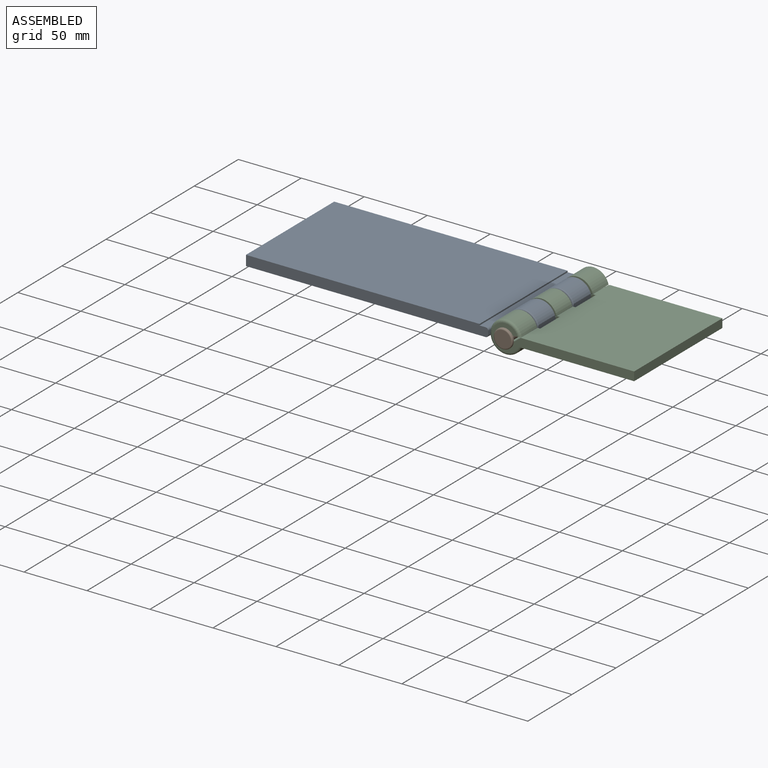
[diagram: assembled view]
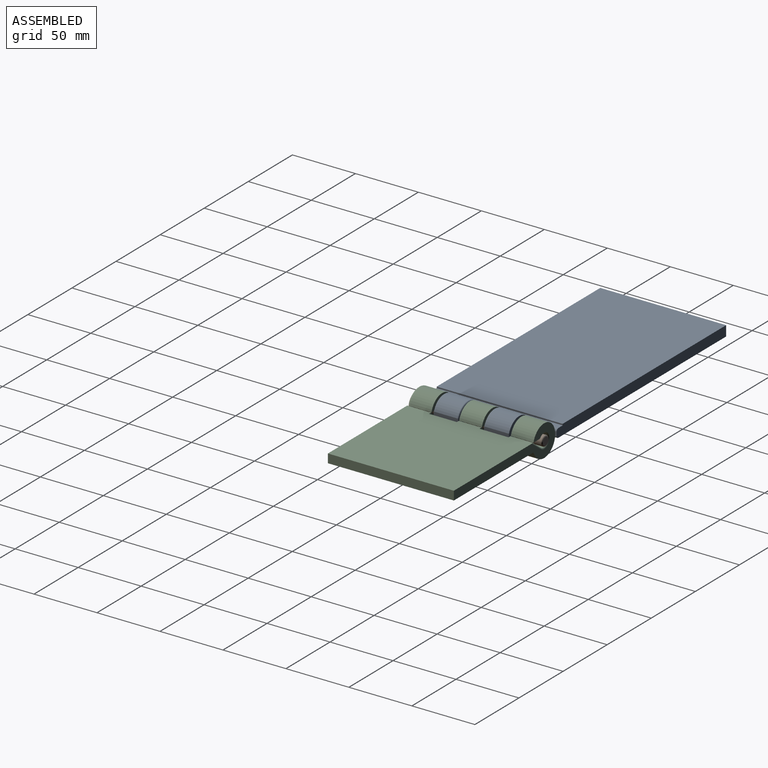
[diagram: assembled view, second angle]
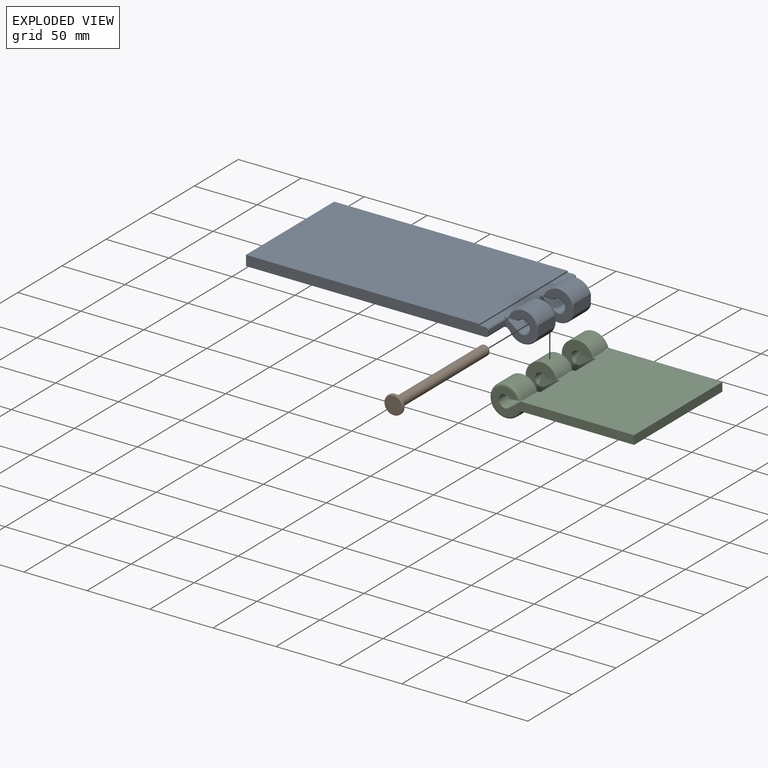
[diagram: exploded view]
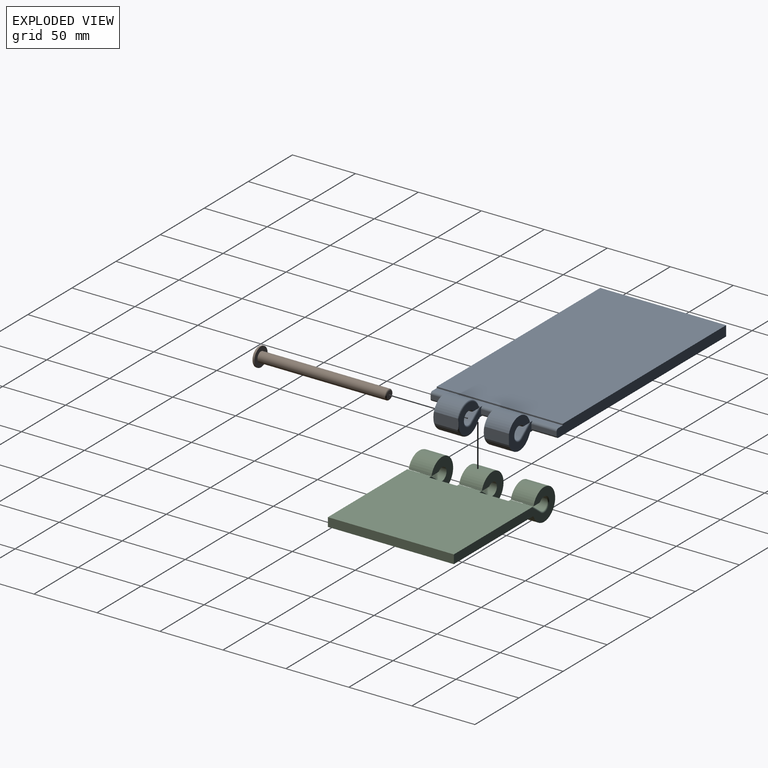
[diagram: exploded view, second angle]
ASSEMBLY  parts=3 mates=2
PART A: 88 faces, bbox 219.5x100x27.1 mm
  f0: cylinder r=12.5mm len=22.3mm, axis (0,-1,0), area 502mm2, adj f13,f38,f42,f50
  f1: cylinder r=12.5mm len=22.3mm, axis (0,-1,0), area 529.8mm2, adj f14,f25,f34,f51
  f2: plane 1.26x1mm, normal (1,0,0), area 0.3mm2, adj f11,f24,f41
  f3: plane 1.26x1mm, normal (1,0,0), area 0.3mm2, adj f12,f25,f31
  f4: plane 1.26x1mm, normal (1,0,0), area 0.3mm2, adj f11,f29,f37
  f5: plane 1.85x1mm, normal (1,0,0), area 0.4mm2, adj f13,f29,f39
  f6: plane 1.26x1mm, normal (1,0,0), area 0.3mm2, adj f12,f27,f33
  f7: cylinder r=12.5mm len=23.88mm, axis (0,-1,0), area 575.5mm2, adj f9,f19,f23,f38,f42,f48,f49,f50
  f8: cylinder r=12.5mm len=23.88mm, axis (0,-1,0), area 606mm2, adj f10,f25,f28,f34,f47,f51
  f9: plane 20.01x8.23mm, normal (0,0,-1), area 163.8mm2, adj f7,f19,f21,f23,f24,f29,f36,f38
  f10: plane 20.01x8.23mm, normal (0,0,-1), area 163.8mm2, adj f8,f20,f25,f27,f28,f30,f32,f34
  f11: plane 20x9.36mm, normal (0.61,0,0.8), area 213.7mm2, adj f2,f4,f17,f21,f24,f29,f37,f41
  f12: plane 20x9.36mm, normal (0.61,0,0.8), area 213.7mm2, adj f3,f6,f17,f20,f25,f27,f31,f33
  f13: plane 20x2.91mm, normal (-0.84,0,-0.54), area 65mm2, adj f0,f5,f18,f22,f24,f29,f39,f43
  f14: plane 20x2.91mm, normal (-0.84,0,-0.54), area 67.1mm2, adj f1,f18,f25,f26,f27,f35
  f15: plane 192.32x8.1mm, normal (0,1,0), area 1548.4mm2, adj f17,f18,f44,f54,f57,f58,f59,f60
  f16: plane 192.32x8.1mm, normal (0,-1,0), area 1548.4mm2, adj f17,f18,f46,f52,f55,f58,f59,f60
  f17: plane 100x8.21mm, normal (0,0,1), area 624.1mm2, adj f11,f12,f15,f16,f24,f25,f27,f29
  f18: plane 193.6x100mm, normal (0,0,-1), area 19163mm2, adj f13,f14,f15,f16,f24,f25,f27,f29
  f19: plane 1.31x1mm, normal (1,0,0), area 0.6mm2, adj f7,f9,f38,f48
  f20: cylinder r=5mm len=18mm, axis (0,-1,0), area 421.1mm2, adj f10,f12,f30,f32
  f21: cylinder r=5mm len=18mm, axis (0,-1,0), area 421.1mm2, adj f9,f11,f36,f40
  f22: plane 1.85x1mm, normal (1,0,0), area 0.4mm2, adj f13,f24,f43
  f23: plane 1.31x1mm, normal (1,0,0), area 0.6mm2, adj f7,f9,f42,f49
  f24: plane 27.17x23mm, normal (0,-1,0), area 296.2mm2, adj f2,f9,f11,f13,f17,f18,f22,f40
  f25: plane 27.46x25mm, normal (0,1,0), area 360.5mm2, adj f1,f3,f8,f10,f12,f14,f17,f18
  f26: plane 1.85x1mm, normal (1,0,0), area 0.4mm2, adj f14,f27,f35
  f27: plane 27.17x23mm, normal (0,-1,0), area 296.2mm2, adj f6,f10,f12,f14,f17,f18,f26,f32
  f28: plane 1.31x1mm, normal (1,0,0), area 0.6mm2, adj f8,f10,f34,f47
  f29: plane 27.17x23mm, normal (0,1,0), area 296.2mm2, adj f4,f5,f9,f11,f13,f17,f18,f36
  f30: torus R=6mm, axis (0,-1,0), area 39.9mm2, adj f10,f20,f25,f31
  f31: cylinder r=1mm len=9.25mm, axis (-0.8,0,0.61), area 16.6mm2, adj f3,f12,f25,f30
  f32: torus R=6mm, axis (0,-1,0), area 39.9mm2, adj f10,f20,f27,f33
  f33: cylinder r=1mm len=9.25mm, axis (0.8,0,-0.61), area 16.6mm2, adj f6,f12,f27,f32
  f34: torus R=11.5mm, axis (0,-1,0), area 94.7mm2, adj f1,f8,f10,f27,f28,f35,f51
  f35: cylinder r=1mm len=3.65mm, axis (-0.54,0,0.84), area 4.2mm2, adj f14,f26,f27,f34
  f36: torus R=6mm, axis (0,-1,0), area 39.9mm2, adj f9,f21,f29,f37
  f37: cylinder r=1mm len=9.25mm, axis (-0.8,0,0.61), area 16.6mm2, adj f4,f11,f29,f36
  f38: torus R=11.5mm, axis (0,-1,0), area 94.7mm2, adj f0,f7,f9,f19,f29,f39,f50
  f39: cylinder r=1mm len=3.65mm, axis (0.54,0,-0.84), area 4.2mm2, adj f5,f13,f29,f38
  f40: torus R=6mm, axis (0,-1,0), area 39.9mm2, adj f9,f21,f24,f41
  f41: cylinder r=1mm len=9.25mm, axis (0.8,0,-0.61), area 16.6mm2, adj f2,f11,f24,f40
  f42: torus R=11.5mm, axis (0,-1,0), area 94.7mm2, adj f0,f7,f9,f23,f24,f43,f50
  f43: cylinder r=1mm len=3.65mm, axis (-0.54,0,0.84), area 4.2mm2, adj f13,f22,f24,f42
  f44: plane 20x3mm, normal (1,0,0), area 60mm2, adj f15,f25,f54,f57
  f45: plane 20x3mm, normal (1,0,0), area 60mm2, adj f27,f29,f53,f56
  f46: plane 20x3mm, normal (1,0,0), area 60mm2, adj f16,f24,f52,f55
  f47: plane 1.31x0.42mm, normal (0,-1,0), area 0.3mm2, adj f8,f10,f28
  f48: plane 1.31x0.42mm, normal (0,1,0), area 0.3mm2, adj f7,f9,f19
  f49: plane 1.31x0.42mm, normal (0,-1,0), area 0.3mm2, adj f7,f9,f23
  f50: plane 19.92x8.34mm, normal (1,0,0), area 163.5mm2, adj f0,f7,f38,f42
  f51: plane 19.96x8.34mm, normal (1,0,0), area 165.1mm2, adj f1,f8,f25,f34
  f52: cylinder r=2mm len=20mm, axis (0,1,0), area 62.8mm2, adj f16,f17,f24,f46
  f53: cylinder r=2mm len=20mm, axis (0,1,0), area 62.8mm2, adj f17,f27,f29,f45
  f54: cylinder r=2mm len=20mm, axis (0,1,0), area 62.8mm2, adj f15,f17,f25,f44
  f55: cylinder r=2mm len=20mm, axis (0,-1,0), area 62.8mm2, adj f16,f18,f24,f46
  f56: cylinder r=2mm len=20mm, axis (0,-1,0), area 62.8mm2, adj f18,f27,f29,f45
  f57: cylinder r=2mm len=20mm, axis (0,-1,0), area 62.8mm2, adj f15,f18,f25,f44
  f58: plane 100x8.1mm, normal (-1,0,0), area 515.5mm2, adj f15,f16,f18,f60,f71,f72,f74,f87
  f59: plane 100x1.1mm, normal (1,0,0), area 110mm2, adj f15,f16,f17,f60
  f60: plane 185.39x100mm, normal (0,0,1), area 18538.9mm2, adj f15,f16,f58,f59
  f61: cylinder r=10mm len=17.7mm, axis (0,-1,0), area 328.5mm2, adj f69,f77,f80,f84
  f62: cylinder r=10mm len=17.7mm, axis (0,-1,0), area 328.5mm2, adj f70,f78,f79,f85
  f63: cylinder r=10mm len=17.53mm, axis (0,-1,0), area 323.8mm2, adj f65,f77,f80,f84
  f64: cylinder r=10mm len=17.53mm, axis (0,-1,0), area 323.8mm2, adj f66,f78,f79,f85
  f65: plane 15x3.32mm, normal (0,0,1), area 49.9mm2, adj f63,f76,f77,f80
  f66: plane 15x3.32mm, normal (0,0,1), area 49.9mm2, adj f64,f75,f78,f79
  f67: plane 15x8.69mm, normal (-0.61,0,-0.8), area 163.9mm2, adj f73,f76,f77,f80
  f68: plane 15x8.69mm, normal (-0.61,0,-0.8), area 163.9mm2, adj f73,f75,f78,f79
  f69: plane 15x4.06mm, normal (0.84,0,0.54), area 72.4mm2, adj f61,f74,f77,f80
  f70: plane 15x4.06mm, normal (0.84,0,0.54), area 72.4mm2, adj f62,f74,f78,f79
  f71: plane 189.82x3.1mm, normal (0,-1,0), area 580.8mm2, adj f58,f73,f74,f81,f86,f87
  f72: plane 189.82x3.1mm, normal (0,1,0), area 580.8mm2, adj f58,f73,f74,f83,f86,f87
  f73: plane 95x9.87mm, normal (0,0,-1), area 746.3mm2, adj f67,f68,f71,f72,f77,f78,f79,f80
  f74: plane 194.97x95mm, normal (0,0,1), area 18187.1mm2, adj f58,f69,f70,f71,f72,f77,f78,f79
  f75: cylinder r=7.5mm len=15mm, axis (0,-1,0), area 507.2mm2, adj f66,f68,f78,f79
  f76: cylinder r=7.5mm len=15mm, axis (0,-1,0), area 507.2mm2, adj f65,f67,f77,f80
  f77: plane 25.46x20mm, normal (0,1,0), area 119.5mm2, adj f61,f63,f65,f67,f69,f73,f74,f76
  f78: plane 25.46x20mm, normal (0,-1,0), area 119.5mm2, adj f62,f64,f66,f68,f70,f73,f74,f75
  f79: plane 25.46x20mm, normal (0,1,0), area 119.5mm2, adj f62,f64,f66,f68,f70,f73,f74,f75
  f80: plane 25.46x20mm, normal (0,-1,0), area 119.5mm2, adj f61,f63,f65,f67,f69,f73,f74,f76
  f81: plane 20x2mm, normal (-1,0,0), area 40mm2, adj f71,f73,f74,f78
  f82: plane 25x2mm, normal (-1,0,0), area 50mm2, adj f73,f74,f79,f80
  f83: plane 20x2mm, normal (-1,0,0), area 40mm2, adj f72,f73,f74,f77
  f84: plane 15x7.43mm, normal (-1,0,0), area 111.5mm2, adj f61,f63,f77,f80
  f85: plane 15x7.43mm, normal (-1,0,0), area 111.5mm2, adj f62,f64,f78,f79
  f86: plane 95x1.1mm, normal (-1,0,0), area 104.5mm2, adj f71,f72,f73,f87
  f87: plane 182.89x95mm, normal (0,0,-1), area 17374.5mm2, adj f58,f71,f72,f86
PART B: 7 faces, bbox 16.2x104x16.2 mm
  f0: cylinder r=7.5mm len=15mm, axis (0,1,0), area 47.1mm2, adj f2,f3
  f1: plane 13x13mm, normal (0,-1,0), area 132.7mm2, adj f2
  f2: torus R=6.5mm, axis (0,-1,0), area 70.4mm2, adj f0,f1
  f3: plane 15x15mm, normal (0,1,0), area 126.4mm2, adj f0,f6
  f4: plane 6x6mm, normal (0,1,0), area 28.3mm2, adj f5
  f5: torus R=3mm, axis (0,-1,0), area 35.9mm2, adj f4,f6
  f6: cylinder r=4mm len=101mm, axis (0,-1,0), area 2538.4mm2, adj f3,f5
PART C: 34 faces, bbox 115.9x100x27.1 mm
  f0: plane 18x8.22mm, normal (0,0,-1), area 148mm2, adj f2,f11,f24,f25
  f1: plane 18x8.22mm, normal (0,0,-1), area 147.7mm2, adj f3,f10,f18,f20,f27
  f2: cylinder r=12.5mm len=25mm, axis (0,-1,0), area 1227.8mm2, adj f0,f6,f24,f25
  f3: cylinder r=12.5mm len=25mm, axis (0,-1,0), area 1227.8mm2, adj f1,f7,f18,f27
  f4: plane 18x9.36mm, normal (-0.61,0,0.8), area 211.8mm2, adj f11,f14,f24,f25
  f5: plane 17x9.36mm, normal (-0.61,0,0.8), area 200.1mm2, adj f10,f14,f21,f27
  f6: plane 18x2.91mm, normal (0.84,0,-0.54), area 62.3mm2, adj f2,f16,f24,f25
  f7: plane 18x2.91mm, normal (0.84,0,-0.54), area 62.3mm2, adj f3,f16,f18,f27
  f8: plane 19x8.22mm, normal (0,0,-1), area 155.3mm2, adj f9,f12,f19,f22,f26
  f9: cylinder r=12.5mm len=25mm, axis (0,-1,0), area 1159.6mm2, adj f8,f17,f22,f26
  f10: cylinder r=5mm len=17mm, axis (0,-1,0), area 397.7mm2, adj f1,f5,f20,f27
  f11: cylinder r=5mm len=18mm, axis (0,-1,0), area 421.1mm2, adj f0,f4,f24,f25
  f12: cylinder r=5mm len=19mm, axis (0,-1,0), area 444.5mm2, adj f8,f13,f19,f26
  f13: plane 19x9.36mm, normal (-0.61,0,0.8), area 223.6mm2, adj f12,f14,f19,f26
  f14: plane 100x90mm, normal (0,0,1), area 8874.8mm2, adj f4,f5,f13,f15,f18,f19,f21,f24
  f15: plane 100x7mm, normal (1,0,0), area 700mm2, adj f14,f16,f18,f19
  f16: plane 100x92.38mm, normal (0,0,-1), area 8876.2mm2, adj f6,f7,f15,f17,f18,f19,f23,f24
  f17: plane 17x2.91mm, normal (0.84,0,-0.54), area 58.9mm2, adj f9,f16,f23,f26
  f18: plane 114.89x25mm, normal (0,1,0), area 981.9mm2, adj f1,f3,f7,f14,f15,f16,f20,f21
  f19: plane 112.89x21mm, normal (0,-1,0), area 889.8mm2, adj f8,f12,f13,f14,f15,f16,f22,f23
  f20: torus R=6mm, axis (0,-1,0), area 39.9mm2, adj f1,f10,f18,f21
  f21: cylinder r=1mm len=11.01mm, axis (-0.8,0,-0.61), area 19.2mm2, adj f5,f14,f18,f20
  f22: torus R=10.5mm, axis (0,-1,0), area 201.2mm2, adj f8,f9,f19,f23
  f23: cylinder r=2mm len=3.99mm, axis (-0.54,0,-0.84), area 9.4mm2, adj f16,f17,f19,f22
  f24: plane 27.66x25mm, normal (0,-1,0), area 397.5mm2, adj f0,f2,f4,f6,f11,f14,f16,f28
  f25: plane 27.66x25mm, normal (0,1,0), area 397.5mm2, adj f0,f2,f4,f6,f11,f14,f16,f29
  f26: plane 27.66x25mm, normal (0,1,0), area 397.5mm2, adj f8,f9,f12,f13,f14,f16,f17,f28
  f27: plane 27.66x25mm, normal (0,-1,0), area 397.5mm2, adj f1,f3,f5,f7,f10,f14,f16,f29
  f28: plane 22x3mm, normal (-1,0,0), area 66mm2, adj f24,f26,f31,f33
  f29: plane 23x3mm, normal (-1,0,0), area 69mm2, adj f25,f27,f30,f32
  f30: cylinder r=2mm len=23mm, axis (0,-1,0), area 72.3mm2, adj f14,f25,f27,f29
  f31: cylinder r=2mm len=22mm, axis (0,-1,0), area 69.1mm2, adj f14,f24,f26,f28
  f32: cylinder r=2mm len=23mm, axis (0,1,0), area 72.3mm2, adj f16,f25,f27,f29
  f33: cylinder r=2mm len=22mm, axis (0,1,0), area 69.1mm2, adj f16,f24,f26,f28
PLACE A t=(100.47,-35.72,3.16)mm
PLACE B t=(98.85,-36.12,3.16)mm
PLACE C t=(100.65,-36.02,3.16)mm
MATE slider B.f0 <-> C.f2  axis (0,-1,0) through (127.16,64.18,0)mm
MATE cylindrical A.f0 <-> C.f2  axis (0,-1,0) through (127.16,-15.72,0)mm
